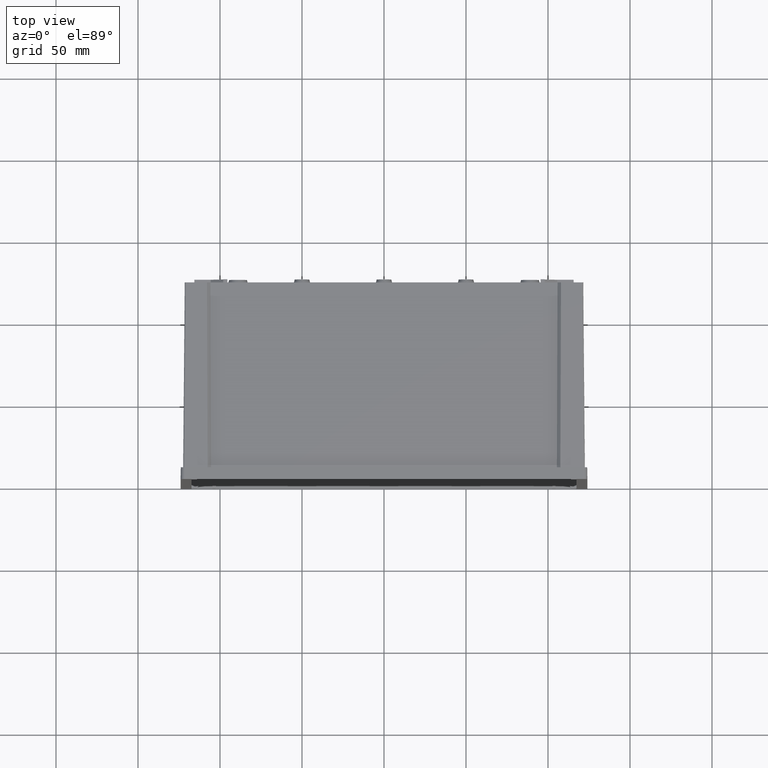
[diagram: clean part render]
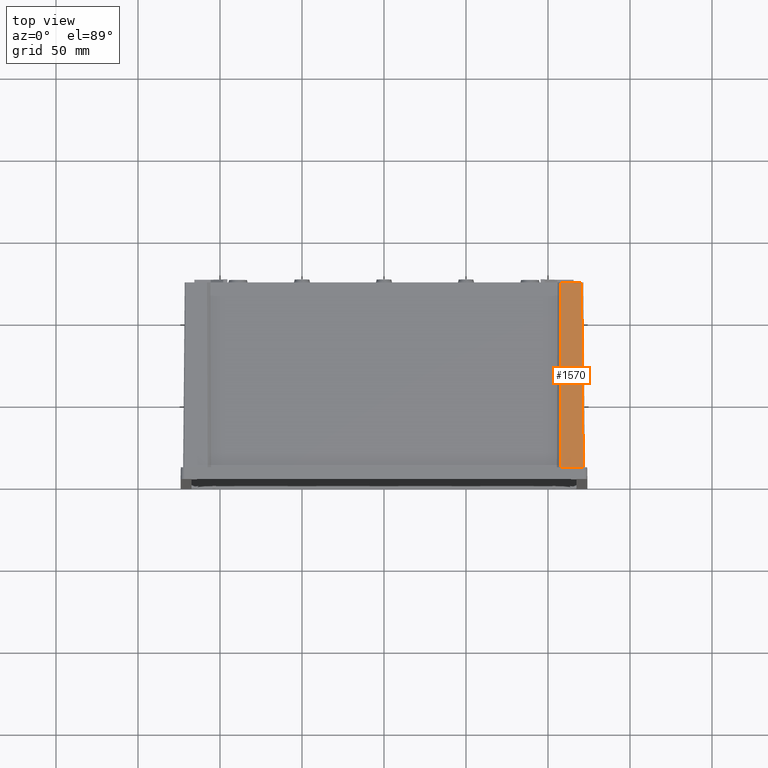
[diagram: same view with one face highlighted and labeled with its STEP entity id]
A machine part, top view. The second image highlights one B-rep face of the part: STEP entity #1570.
In plain terms, the highlighted planar face has unit normal (0, -0.0087, -1).
Its self-contained STEP definition (entity closure, byte-faithful):
#1205 = ORIENTED_EDGE ( 'NONE', *, *, #1649, .F. ) ;
#1264 = ORIENTED_EDGE ( 'NONE', *, *, #1427, .F. ) ;
#1267 = ORIENTED_EDGE ( 'NONE', *, *, #1464, .T. ) ;
#1268 = ORIENTED_EDGE ( 'NONE', *, *, #1648, .F. ) ;
#1427 = EDGE_CURVE ( 'NONE', #5498, #5496, #6922, .T. ) ;
#1464 = EDGE_CURVE ( 'NONE', #5444, #5445, #6983, .T. ) ;
#1570 = ADVANCED_FACE ( 'NONE', ( #9422 ), #9249, .F. ) ;
#1648 = EDGE_CURVE ( 'NONE', #5496, #5445, #9479, .T. ) ;
#1649 = EDGE_CURVE ( 'NONE', #5444, #5498, #9480, .T. ) ;
#5444 = VERTEX_POINT ( 'NONE', #17338 ) ;
#5445 = VERTEX_POINT ( 'NONE', #17339 ) ;
#5489 = VECTOR ( 'NONE', #8415, 1000.000000000000000 ) ;
#5496 = VERTEX_POINT ( 'NONE', #17374 ) ;
#5498 = VERTEX_POINT ( 'NONE', #17375 ) ;
#6182 = EDGE_LOOP ( 'NONE', ( #1267, #1268, #1264, #1205 ) ) ;
#6922 = LINE ( 'NONE', #8413, #5489 ) ;
#6983 = LINE ( 'NONE', #8808, #18301 ) ;
#7291 = VECTOR ( 'NONE', #10611, 1000.000000000000000 ) ;
#7295 = VECTOR ( 'NONE', #10609, 1000.000000000000100 ) ;
#8413 = CARTESIAN_POINT ( 'NONE',  ( 121.4372046288000000, 7.200000000000001100, 173.4371665518999900 ) ) ;
#8415 = DIRECTION ( 'NONE',  ( -1.000000000000000000, 0.0000000000000000000, 0.0000000000000000000 ) ) ;
#8808 = CARTESIAN_POINT ( 'NONE',  ( 120.4528139420000100, 120.0000000000000000, 172.4527758650999900 ) ) ;
#8809 = DIRECTION ( 'NONE',  ( -1.000000000000000000, 0.0000000000000000000, 0.0000000000000000000 ) ) ;
#9249 = PLANE ( 'NONE',  #18184 ) ;
#9250 = CARTESIAN_POINT ( 'NONE',  ( 128.8451076696000000, 0.0000000000000000000, 173.5000000000000300 ) ) ;
#9251 = DIRECTION ( 'NONE',  ( 0.0000000000000000000, -0.008726535498373750800, -0.9999619230641713100 ) ) ;
#9252 = DIRECTION ( 'NONE',  ( 1.000000000000000000, 0.0000000000000000000, 0.0000000000000000000 ) ) ;
#9422 = FACE_OUTER_BOUND ( 'NONE', #6182, .T. ) ;
#9479 = LINE ( 'NONE', #10608, #7295 ) ;
#9480 = LINE ( 'NONE', #10610, #7291 ) ;
#10608 = CARTESIAN_POINT ( 'NONE',  ( 107.5260264664000000, 7.200000000000001100, 173.4371665518999900 ) ) ;
#10609 = DIRECTION ( 'NONE',  ( 0.003614625742244828800, 0.9999553905319525900, -0.008726478489828585000 ) ) ;
#10610 = CARTESIAN_POINT ( 'NONE',  ( 120.4528139420000100, 120.0000000000000000, 172.4527758650999900 ) ) ;
#10611 = DIRECTION ( 'NONE',  ( 0.008726203243944741200, -0.9999238504775704900, 0.008726203243943742000 ) ) ;
#17338 = CARTESIAN_POINT ( 'NONE',  ( 120.4528139420342500, 120.0000000000000000, 172.4527758651163400 ) ) ;
#17339 = CARTESIAN_POINT ( 'NONE',  ( 107.9337744395000000, 120.0000000000000000, 172.4527758650999900 ) ) ;
#17374 = CARTESIAN_POINT ( 'NONE',  ( 107.5260264664000000, 7.200000000000001100, 173.4371665518999900 ) ) ;
#17375 = CARTESIAN_POINT ( 'NONE',  ( 121.4372046288318400, 7.199999999999984200, 173.4371665519138900 ) ) ;
#18184 = AXIS2_PLACEMENT_3D ( 'NONE', #9250, #9251, #9252 ) ;
#18301 = VECTOR ( 'NONE', #8809, 1000.000000000000000 ) ;